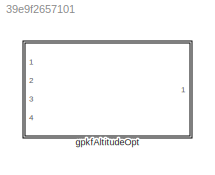
MODEL slx_39e9f2657101
KIND library
CONFIG AbsTol = auto
CONFIG EnableMultiTasking = off
CONFIG FixedStep = auto
CONFIG MaxStep = auto
CONFIG MinStep = auto
CONFIG RelTol = 1e-3
CONFIG SampleTimeConstraint = Unconstrained
CONFIG SolverName = VariableStepAuto
CONFIG StartTime = 0.0
CONFIG StopTime = 10.0
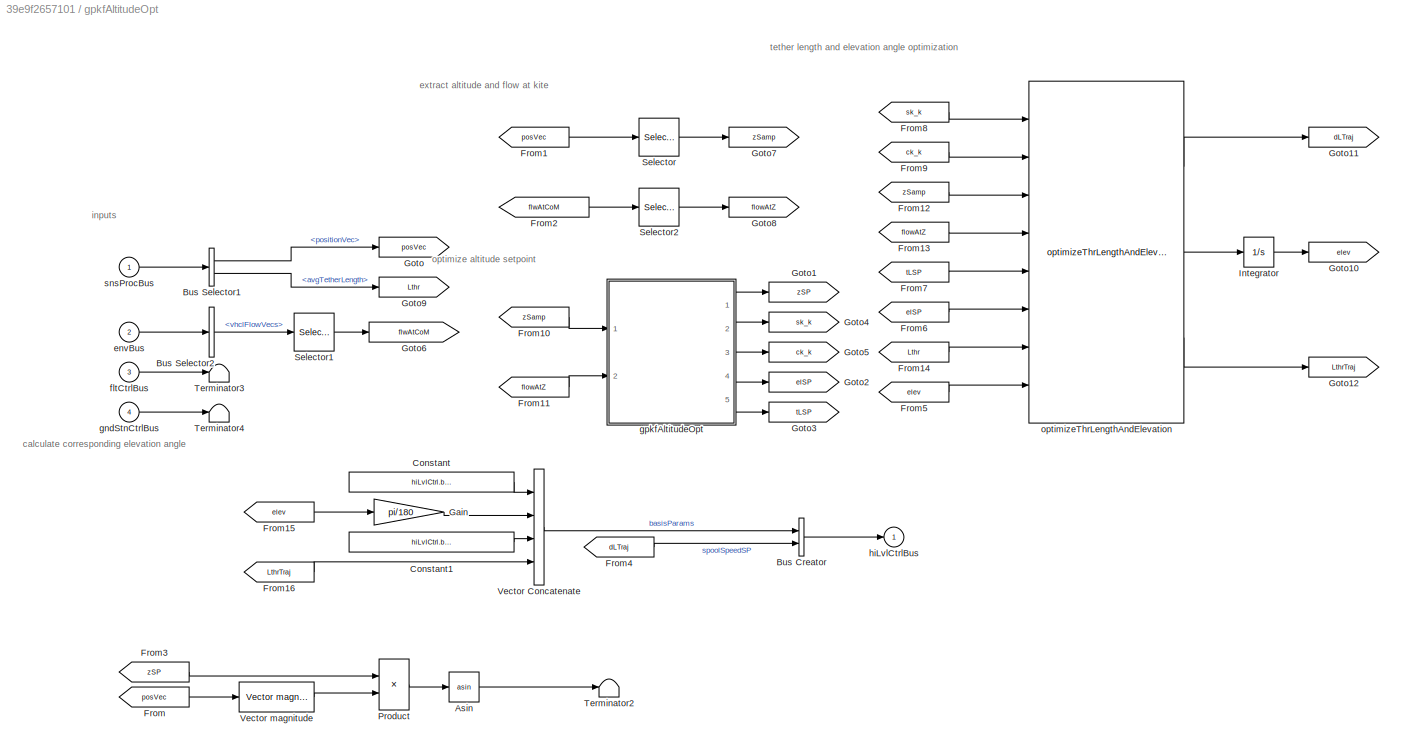
BLOCK [SubSystem] gpkfAltitudeOpt
  InitFcn = initializeBussesFromBlock(gcb)
  LoadFcn = initializeBussesFromBlock(gcb)
  Ports = [4, 1]
  RequestExecContextInheritance = off
  StartFcn = initializeBussesFromBlock(gcb)
  VariantControl = strcmpi(HILVLCONTROLLER,'gpkfAltitudeOpt')
BLOCK [Trigonometry] gpkfAltitudeOpt/Asin
  Operator = asin
  Ports = [1, 1]
BLOCK [BusCreator] gpkfAltitudeOpt/Bus Creator
  DisplayOption = bar
  InheritFromInputs = on
  Inputs = 2
  OutDataTypeStr = Bus: hiLvlCtrlBus
  Ports = [2, 1]
BLOCK [BusSelector] gpkfAltitudeOpt/Bus Selector1
  OutputSignals = positionVec,avgTetherLength
  Ports = [1, 2]
BLOCK [BusSelector] gpkfAltitudeOpt/Bus Selector2
  OutputSignals = vhclFlowVecs
  Ports = [1, 1]
BLOCK [Constant] gpkfAltitudeOpt/Constant
  Value = hiLvlCtrl.basisParams.Value(1:2)
BLOCK [Constant] gpkfAltitudeOpt/Constant1
  Value = hiLvlCtrl.basisParams.Value(4)
BLOCK [From] gpkfAltitudeOpt/From
  GotoTag = posVec
BLOCK [From] gpkfAltitudeOpt/From1
  GotoTag = posVec
BLOCK [From] gpkfAltitudeOpt/From10
  GotoTag = zSamp
BLOCK [From] gpkfAltitudeOpt/From11
  GotoTag = flowAtZ
BLOCK [From] gpkfAltitudeOpt/From12
  GotoTag = zSamp
BLOCK [From] gpkfAltitudeOpt/From13
  GotoTag = flowAtZ
BLOCK [From] gpkfAltitudeOpt/From14
  GotoTag = Lthr
BLOCK [From] gpkfAltitudeOpt/From15
  GotoTag = elev
BLOCK [From] gpkfAltitudeOpt/From16
  GotoTag = LthrTraj
BLOCK [From] gpkfAltitudeOpt/From2
  GotoTag = flwAtCoM
BLOCK [From] gpkfAltitudeOpt/From3
  GotoTag = zSP
BLOCK [From] gpkfAltitudeOpt/From4
  GotoTag = dLTraj
BLOCK [From] gpkfAltitudeOpt/From5
  GotoTag = elev
BLOCK [From] gpkfAltitudeOpt/From6
  GotoTag = elSP
BLOCK [From] gpkfAltitudeOpt/From7
  GotoTag = tLSP
BLOCK [From] gpkfAltitudeOpt/From8
  GotoTag = sk_k
BLOCK [From] gpkfAltitudeOpt/From9
  GotoTag = ck_k
BLOCK [Gain] gpkfAltitudeOpt/Gain
  Gain = pi/180
BLOCK [Goto] gpkfAltitudeOpt/Goto
  GotoTag = posVec
BLOCK [Goto] gpkfAltitudeOpt/Goto1
  GotoTag = zSP
BLOCK [Goto] gpkfAltitudeOpt/Goto10
  GotoTag = elev
BLOCK [Goto] gpkfAltitudeOpt/Goto11
  GotoTag = dLTraj
BLOCK [Goto] gpkfAltitudeOpt/Goto12
  GotoTag = LthrTraj
BLOCK [Goto] gpkfAltitudeOpt/Goto2
  GotoTag = elSP
BLOCK [Goto] gpkfAltitudeOpt/Goto3
  GotoTag = tLSP
BLOCK [Goto] gpkfAltitudeOpt/Goto4
  GotoTag = sk_k
BLOCK [Goto] gpkfAltitudeOpt/Goto5
  GotoTag = ck_k
BLOCK [Goto] gpkfAltitudeOpt/Goto6
  GotoTag = flwAtCoM
BLOCK [Goto] gpkfAltitudeOpt/Goto7
  GotoTag = zSamp
BLOCK [Goto] gpkfAltitudeOpt/Goto8
  GotoTag = flowAtZ
BLOCK [Goto] gpkfAltitudeOpt/Goto9
  GotoTag = Lthr
BLOCK [Integrator] gpkfAltitudeOpt/Integrator
  InitialCondition = hiLvlCtrl.initVals(2)
  Ports = [1, 1]
BLOCK [Product] gpkfAltitudeOpt/Product
  Inputs = */
  Ports = [2, 1]
BLOCK [Selector] gpkfAltitudeOpt/Selector
  IndexOptions = Index vector (dialog),Index vector (dialog)
  Indices = 3,1
  InputPortWidth = 3
  NumberOfDimensions = 2
  OutputSizes = 1,1
  Ports = [1, 1]
BLOCK [Selector] gpkfAltitudeOpt/Selector1
  IndexOptions = Select all,Index vector (dialog)
  Indices = [1 3],5
  InputPortWidth = 3
  NumberOfDimensions = 2
  OutputSizes = 1,1
  Ports = [1, 1]
BLOCK [Selector] gpkfAltitudeOpt/Selector2
  IndexOptions = Index vector (dialog),Index vector (dialog)
  Indices = 1,1
  InputPortWidth = 3
  NumberOfDimensions = 2
  OutputSizes = 1,1
  Ports = [1, 1]
BLOCK [Terminator] gpkfAltitudeOpt/Terminator2
BLOCK [Terminator] gpkfAltitudeOpt/Terminator3
BLOCK [Terminator] gpkfAltitudeOpt/Terminator4
BLOCK [Concatenate] gpkfAltitudeOpt/Vector Concatenate
  NumInputs = 4
  Ports = [4, 1]
BLOCK [Reference] gpkfAltitudeOpt/Vector magnitude  REF=calculate_vector_magnitude/Vector magnitude  (lib defined in slx_4d1e83c0815f)
  Ports = [1, 1]
  SourceBlock = calculate_vector_magnitude/Vector magnitude
BLOCK [Inport] gpkfAltitudeOpt/envBus
  Port = 2
BLOCK [Inport] gpkfAltitudeOpt/fltCtrlBus
  Port = 3
BLOCK [Inport] gpkfAltitudeOpt/gndStnCtrlBus
  Port = 4
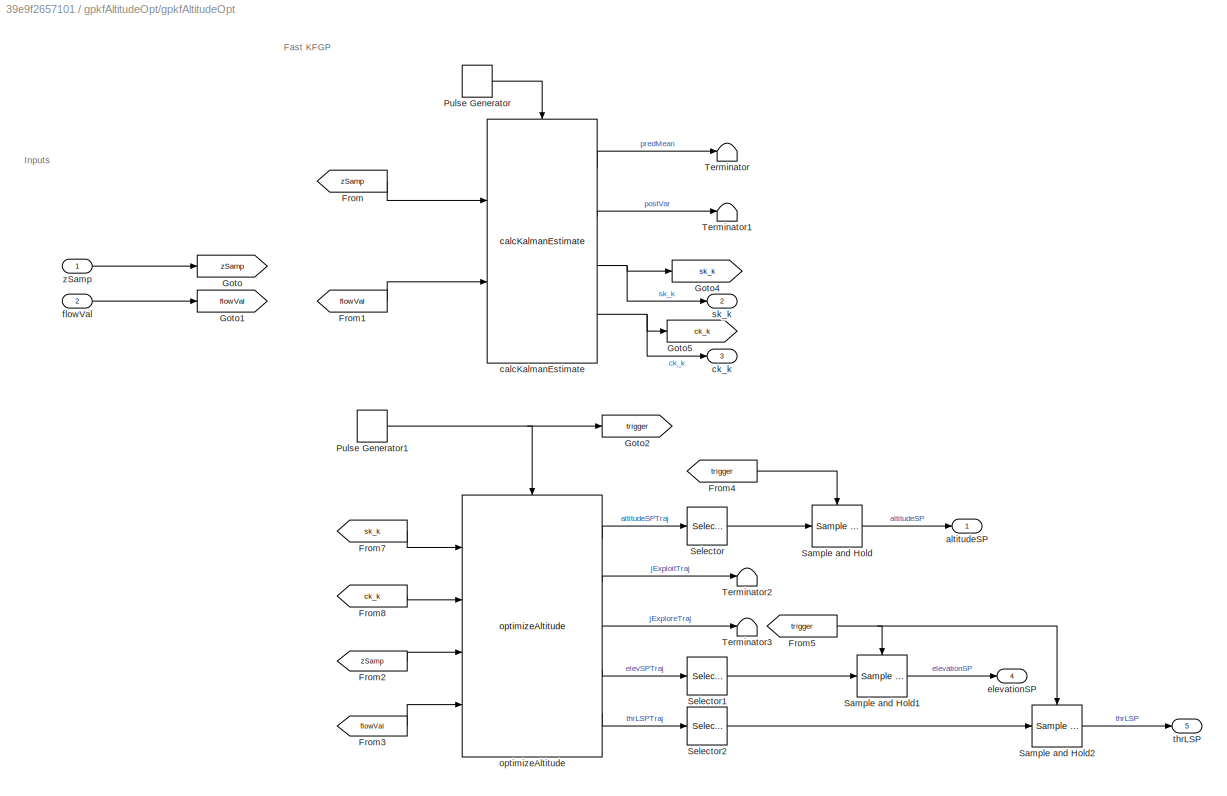
BLOCK [SubSystem] gpkfAltitudeOpt/gpkfAltitudeOpt
  Ports = [2, 5]
  RequestExecContextInheritance = off
BLOCK [From] gpkfAltitudeOpt/gpkfAltitudeOpt/From
  GotoTag = zSamp
BLOCK [From] gpkfAltitudeOpt/gpkfAltitudeOpt/From1
  GotoTag = flowVal
BLOCK [From] gpkfAltitudeOpt/gpkfAltitudeOpt/From2
  GotoTag = zSamp
BLOCK [From] gpkfAltitudeOpt/gpkfAltitudeOpt/From3
  GotoTag = flowVal
BLOCK [From] gpkfAltitudeOpt/gpkfAltitudeOpt/From4
  GotoTag = trigger
BLOCK [From] gpkfAltitudeOpt/gpkfAltitudeOpt/From5
  GotoTag = trigger
BLOCK [From] gpkfAltitudeOpt/gpkfAltitudeOpt/From7
  GotoTag = sk_k
BLOCK [From] gpkfAltitudeOpt/gpkfAltitudeOpt/From8
  GotoTag = ck_k
BLOCK [Goto] gpkfAltitudeOpt/gpkfAltitudeOpt/Goto
  GotoTag = zSamp
BLOCK [Goto] gpkfAltitudeOpt/gpkfAltitudeOpt/Goto1
  GotoTag = flowVal
BLOCK [Goto] gpkfAltitudeOpt/gpkfAltitudeOpt/Goto2
  GotoTag = trigger
BLOCK [Goto] gpkfAltitudeOpt/gpkfAltitudeOpt/Goto4
  GotoTag = sk_k
BLOCK [Goto] gpkfAltitudeOpt/gpkfAltitudeOpt/Goto5
  GotoTag = ck_k
BLOCK [DiscretePulseGenerator] gpkfAltitudeOpt/gpkfAltitudeOpt/Pulse Generator
  Period = hiLvlCtrl.kfgpTimeStep*60
  Ports = [0, 1]
  PulseType = Time based
BLOCK [DiscretePulseGenerator] gpkfAltitudeOpt/gpkfAltitudeOpt/Pulse Generator1
  Period = hiLvlCtrl.mpckfgpTimeStep*60
  PhaseDelay = hiLvlCtrl.mpckfgpTimeStep*60
  Ports = [0, 1]
  PulseType = Time based
BLOCK [Reference] gpkfAltitudeOpt/gpkfAltitudeOpt/Sample and Hold  REF=dspsigops/Sample
and Hold
  Ports = [1, 1, 0, 1]
  SourceBlock = dspsigops/Sample\nand Hold
  SourceProductBaseCode = DS
  SourceType = Sample and Hold
BLOCK [Reference] gpkfAltitudeOpt/gpkfAltitudeOpt/Sample and Hold1  REF=dspsigops/Sample
and Hold
  Ports = [1, 1, 0, 1]
  SourceBlock = dspsigops/Sample\nand Hold
  SourceProductBaseCode = DS
  SourceType = Sample and Hold
BLOCK [Reference] gpkfAltitudeOpt/gpkfAltitudeOpt/Sample and Hold2  REF=dspsigops/Sample
and Hold
  Ports = [1, 1, 0, 1]
  SourceBlock = dspsigops/Sample\nand Hold
  SourceProductBaseCode = DS
  SourceType = Sample and Hold
BLOCK [Selector] gpkfAltitudeOpt/gpkfAltitudeOpt/Selector
  IndexOptions = Index vector (dialog)
  Indices = 1
  InputPortWidth = hiLvlCtrl.predictionHorz
  OutputSizes = 1
  Ports = [1, 1]
BLOCK [Selector] gpkfAltitudeOpt/gpkfAltitudeOpt/Selector1
  IndexOptions = Index vector (dialog)
  Indices = 1
  InputPortWidth = hiLvlCtrl.predictionHorz
  OutputSizes = 1
  Ports = [1, 1]
BLOCK [Selector] gpkfAltitudeOpt/gpkfAltitudeOpt/Selector2
  IndexOptions = Index vector (dialog)
  Indices = 1
  InputPortWidth = hiLvlCtrl.predictionHorz
  OutputSizes = 1
  Ports = [1, 1]
BLOCK [Terminator] gpkfAltitudeOpt/gpkfAltitudeOpt/Terminator
BLOCK [Terminator] gpkfAltitudeOpt/gpkfAltitudeOpt/Terminator1
BLOCK [Terminator] gpkfAltitudeOpt/gpkfAltitudeOpt/Terminator2
BLOCK [Terminator] gpkfAltitudeOpt/gpkfAltitudeOpt/Terminator3
BLOCK [Outport] gpkfAltitudeOpt/gpkfAltitudeOpt/altitudeSP
BLOCK [Reference] gpkfAltitudeOpt/gpkfAltitudeOpt/calcKalmanEstimate  REF=calcKalmanEstimate_ul/calcKalmanEstimate
  Ports = [2, 4, 0, 1]
  SourceBlock = calcKalmanEstimate_ul/calcKalmanEstimate
BLOCK [Outport] gpkfAltitudeOpt/gpkfAltitudeOpt/ck_k
  Port = 3
BLOCK [Outport] gpkfAltitudeOpt/gpkfAltitudeOpt/elevationSP
  Port = 4
BLOCK [Inport] gpkfAltitudeOpt/gpkfAltitudeOpt/flowVal
  Port = 2
BLOCK [Reference] gpkfAltitudeOpt/gpkfAltitudeOpt/optimizeAltitude  REF=optimizeAltitude_ul/optimizeAltitude
  Ports = [4, 5, 0, 1]
  SourceBlock = optimizeAltitude_ul/optimizeAltitude
BLOCK [Outport] gpkfAltitudeOpt/gpkfAltitudeOpt/sk_k
  Port = 2
BLOCK [Outport] gpkfAltitudeOpt/gpkfAltitudeOpt/thrLSP
  Port = 5
BLOCK [Inport] gpkfAltitudeOpt/gpkfAltitudeOpt/zSamp
BLOCK [Outport] gpkfAltitudeOpt/hiLvlCtrlBus
BLOCK [Reference] gpkfAltitudeOpt/optimizeThrLengthAndElevation  REF=optimizeThrLenghtAndElevation_ul/optimizeThrLengthAndElevation
  Ports = [8, 3]
  SourceBlock = optimizeThrLenghtAndElevation_ul/optimizeThrLengthAndElevation
BLOCK [Inport] gpkfAltitudeOpt/snsProcBus
ANNOTATION gpkfAltitudeOpt: calculate corresponding elevation angle
ANNOTATION gpkfAltitudeOpt: extract altitude and flow at kite
ANNOTATION gpkfAltitudeOpt: inputs
ANNOTATION gpkfAltitudeOpt: optimize altitude setpoint
ANNOTATION gpkfAltitudeOpt: tether length and elevation angle optimization
ANNOTATION gpkfAltitudeOpt/gpkfAltitudeOpt: Fast KFGP
ANNOTATION gpkfAltitudeOpt/gpkfAltitudeOpt: Inputs
LINE gpkfAltitudeOpt/Asin:1 -> gpkfAltitudeOpt/Terminator2:1
LINE gpkfAltitudeOpt/Bus Creator:1 -> gpkfAltitudeOpt/hiLvlCtrlBus:1
LINE gpkfAltitudeOpt/Bus Selector1:1 -> gpkfAltitudeOpt/Goto:1
LINE gpkfAltitudeOpt/Bus Selector1:2 -> gpkfAltitudeOpt/Goto9:1
LINE gpkfAltitudeOpt/Bus Selector2:1 -> gpkfAltitudeOpt/Selector1:1
LINE gpkfAltitudeOpt/Constant1:1 -> gpkfAltitudeOpt/Vector Concatenate:3
LINE gpkfAltitudeOpt/Constant:1 -> gpkfAltitudeOpt/Vector Concatenate:1
LINE gpkfAltitudeOpt/From10:1 -> gpkfAltitudeOpt/gpkfAltitudeOpt:1
LINE gpkfAltitudeOpt/From11:1 -> gpkfAltitudeOpt/gpkfAltitudeOpt:2
LINE gpkfAltitudeOpt/From12:1 -> gpkfAltitudeOpt/optimizeThrLengthAndElevation:3
LINE gpkfAltitudeOpt/From13:1 -> gpkfAltitudeOpt/optimizeThrLengthAndElevation:4
LINE gpkfAltitudeOpt/From14:1 -> gpkfAltitudeOpt/optimizeThrLengthAndElevation:7
LINE gpkfAltitudeOpt/From15:1 -> gpkfAltitudeOpt/Gain:1
LINE gpkfAltitudeOpt/From16:1 -> gpkfAltitudeOpt/Vector Concatenate:4
LINE gpkfAltitudeOpt/From1:1 -> gpkfAltitudeOpt/Selector:1
LINE gpkfAltitudeOpt/From2:1 -> gpkfAltitudeOpt/Selector2:1
LINE gpkfAltitudeOpt/From3:1 -> gpkfAltitudeOpt/Product:1
LINE gpkfAltitudeOpt/From4:1 -> gpkfAltitudeOpt/Bus Creator:2
LINE gpkfAltitudeOpt/From5:1 -> gpkfAltitudeOpt/optimizeThrLengthAndElevation:8
LINE gpkfAltitudeOpt/From6:1 -> gpkfAltitudeOpt/optimizeThrLengthAndElevation:6
LINE gpkfAltitudeOpt/From7:1 -> gpkfAltitudeOpt/optimizeThrLengthAndElevation:5
LINE gpkfAltitudeOpt/From8:1 -> gpkfAltitudeOpt/optimizeThrLengthAndElevation:1
LINE gpkfAltitudeOpt/From9:1 -> gpkfAltitudeOpt/optimizeThrLengthAndElevation:2
LINE gpkfAltitudeOpt/From:1 -> gpkfAltitudeOpt/Vector magnitude:1
LINE gpkfAltitudeOpt/Gain:1 -> gpkfAltitudeOpt/Vector Concatenate:2
LINE gpkfAltitudeOpt/Integrator:1 -> gpkfAltitudeOpt/Goto10:1
LINE gpkfAltitudeOpt/Product:1 -> gpkfAltitudeOpt/Asin:1
LINE gpkfAltitudeOpt/Selector1:1 -> gpkfAltitudeOpt/Goto6:1
LINE gpkfAltitudeOpt/Selector2:1 -> gpkfAltitudeOpt/Goto8:1
LINE gpkfAltitudeOpt/Selector:1 -> gpkfAltitudeOpt/Goto7:1
LINE gpkfAltitudeOpt/Vector Concatenate:1 -> gpkfAltitudeOpt/Bus Creator:1
LINE gpkfAltitudeOpt/Vector magnitude:1 -> gpkfAltitudeOpt/Product:2
LINE gpkfAltitudeOpt/envBus:1 -> gpkfAltitudeOpt/Bus Selector2:1
LINE gpkfAltitudeOpt/fltCtrlBus:1 -> gpkfAltitudeOpt/Terminator3:1
LINE gpkfAltitudeOpt/gndStnCtrlBus:1 -> gpkfAltitudeOpt/Terminator4:1
LINE gpkfAltitudeOpt/gpkfAltitudeOpt/From1:1 -> gpkfAltitudeOpt/gpkfAltitudeOpt/calcKalmanEstimate:2
LINE gpkfAltitudeOpt/gpkfAltitudeOpt/From2:1 -> gpkfAltitudeOpt/gpkfAltitudeOpt/optimizeAltitude:3
LINE gpkfAltitudeOpt/gpkfAltitudeOpt/From3:1 -> gpkfAltitudeOpt/gpkfAltitudeOpt/optimizeAltitude:4
LINE gpkfAltitudeOpt/gpkfAltitudeOpt/From4:1 -> gpkfAltitudeOpt/gpkfAltitudeOpt/Sample and Hold:trigger
NET gpkfAltitudeOpt/gpkfAltitudeOpt/From5:1 -> gpkfAltitudeOpt/gpkfAltitudeOpt/Sample and Hold1:trigger, gpkfAltitudeOpt/gpkfAltitudeOpt/Sample and Hold2:trigger
LINE gpkfAltitudeOpt/gpkfAltitudeOpt/From7:1 -> gpkfAltitudeOpt/gpkfAltitudeOpt/optimizeAltitude:1
LINE gpkfAltitudeOpt/gpkfAltitudeOpt/From8:1 -> gpkfAltitudeOpt/gpkfAltitudeOpt/optimizeAltitude:2
LINE gpkfAltitudeOpt/gpkfAltitudeOpt/From:1 -> gpkfAltitudeOpt/gpkfAltitudeOpt/calcKalmanEstimate:1
NET gpkfAltitudeOpt/gpkfAltitudeOpt/Pulse Generator1:1 -> gpkfAltitudeOpt/gpkfAltitudeOpt/Goto2:1, gpkfAltitudeOpt/gpkfAltitudeOpt/optimizeAltitude:trigger
LINE gpkfAltitudeOpt/gpkfAltitudeOpt/Pulse Generator:1 -> gpkfAltitudeOpt/gpkfAltitudeOpt/calcKalmanEstimate:trigger
LINE gpkfAltitudeOpt/gpkfAltitudeOpt/Sample and Hold1:1 -> gpkfAltitudeOpt/gpkfAltitudeOpt/elevationSP:1
LINE gpkfAltitudeOpt/gpkfAltitudeOpt/Sample and Hold2:1 -> gpkfAltitudeOpt/gpkfAltitudeOpt/thrLSP:1
LINE gpkfAltitudeOpt/gpkfAltitudeOpt/Sample and Hold:1 -> gpkfAltitudeOpt/gpkfAltitudeOpt/altitudeSP:1
LINE gpkfAltitudeOpt/gpkfAltitudeOpt/Selector1:1 -> gpkfAltitudeOpt/gpkfAltitudeOpt/Sample and Hold1:1
LINE gpkfAltitudeOpt/gpkfAltitudeOpt/Selector2:1 -> gpkfAltitudeOpt/gpkfAltitudeOpt/Sample and Hold2:1
LINE gpkfAltitudeOpt/gpkfAltitudeOpt/Selector:1 -> gpkfAltitudeOpt/gpkfAltitudeOpt/Sample and Hold:1
LINE gpkfAltitudeOpt/gpkfAltitudeOpt/calcKalmanEstimate:1 -> gpkfAltitudeOpt/gpkfAltitudeOpt/Terminator:1
LINE gpkfAltitudeOpt/gpkfAltitudeOpt/calcKalmanEstimate:2 -> gpkfAltitudeOpt/gpkfAltitudeOpt/Terminator1:1
NET gpkfAltitudeOpt/gpkfAltitudeOpt/calcKalmanEstimate:3 -> gpkfAltitudeOpt/gpkfAltitudeOpt/Goto4:1, gpkfAltitudeOpt/gpkfAltitudeOpt/sk_k:1
NET gpkfAltitudeOpt/gpkfAltitudeOpt/calcKalmanEstimate:4 -> gpkfAltitudeOpt/gpkfAltitudeOpt/Goto5:1, gpkfAltitudeOpt/gpkfAltitudeOpt/ck_k:1
LINE gpkfAltitudeOpt/gpkfAltitudeOpt/flowVal:1 -> gpkfAltitudeOpt/gpkfAltitudeOpt/Goto1:1
LINE gpkfAltitudeOpt/gpkfAltitudeOpt/optimizeAltitude:1 -> gpkfAltitudeOpt/gpkfAltitudeOpt/Selector:1
LINE gpkfAltitudeOpt/gpkfAltitudeOpt/optimizeAltitude:2 -> gpkfAltitudeOpt/gpkfAltitudeOpt/Terminator2:1
LINE gpkfAltitudeOpt/gpkfAltitudeOpt/optimizeAltitude:3 -> gpkfAltitudeOpt/gpkfAltitudeOpt/Terminator3:1
LINE gpkfAltitudeOpt/gpkfAltitudeOpt/optimizeAltitude:4 -> gpkfAltitudeOpt/gpkfAltitudeOpt/Selector1:1
LINE gpkfAltitudeOpt/gpkfAltitudeOpt/optimizeAltitude:5 -> gpkfAltitudeOpt/gpkfAltitudeOpt/Selector2:1
LINE gpkfAltitudeOpt/gpkfAltitudeOpt/zSamp:1 -> gpkfAltitudeOpt/gpkfAltitudeOpt/Goto:1
LINE gpkfAltitudeOpt/gpkfAltitudeOpt:1 -> gpkfAltitudeOpt/Goto1:1
LINE gpkfAltitudeOpt/gpkfAltitudeOpt:2 -> gpkfAltitudeOpt/Goto4:1
LINE gpkfAltitudeOpt/gpkfAltitudeOpt:3 -> gpkfAltitudeOpt/Goto5:1
LINE gpkfAltitudeOpt/gpkfAltitudeOpt:4 -> gpkfAltitudeOpt/Goto2:1
LINE gpkfAltitudeOpt/gpkfAltitudeOpt:5 -> gpkfAltitudeOpt/Goto3:1
LINE gpkfAltitudeOpt/optimizeThrLengthAndElevation:1 -> gpkfAltitudeOpt/Goto11:1
LINE gpkfAltitudeOpt/optimizeThrLengthAndElevation:2 -> gpkfAltitudeOpt/Integrator:1
LINE gpkfAltitudeOpt/optimizeThrLengthAndElevation:3 -> gpkfAltitudeOpt/Goto12:1
LINE gpkfAltitudeOpt/snsProcBus:1 -> gpkfAltitudeOpt/Bus Selector1:1
note: NET lines group one-source signal fan-out (src -> all destinations, sorted); 1:1 wires keep LINE
